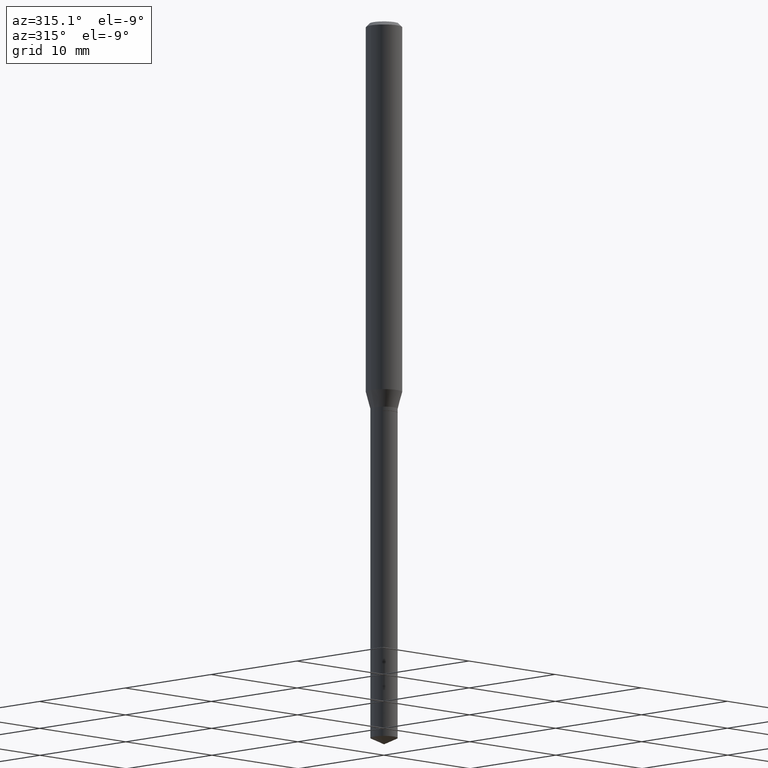
[diagram: clean part render]
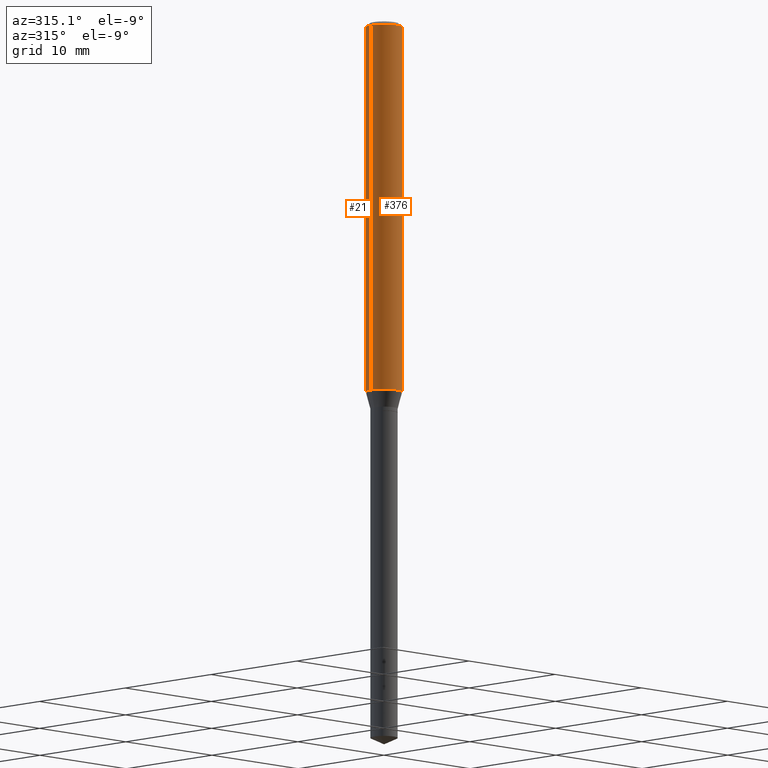
[diagram: same view with one multi-face feature highlighted, each face labeled with its STEP entity id]
A machine part, auxiliary view. The highlighted faces form ONE feature: a constant-radius fillet chain: 2 tangent blend faces with common blend radius 1.4999 mm. The faces share edges in the B-rep.
Their STEP definitions:
[1] entity #376 (Cylinder):
#10 = DIRECTION ( 'NONE',  ( -2.445468806185136597E-29, 3.491481338843145583E-15, 1.000000000000000000 ) ) ;
#12 = VECTOR ( 'NONE', #152, 39.37007874015748143 ) ;
#16 = CARTESIAN_POINT ( 'NONE',  ( 2.952297720010632221E-29, -4.215098704205641953E-15, -1.207252250588358500 ) ) ;
#27 = ORIENTED_EDGE ( 'NONE', *, *, #114, .T. ) ;
#34 = CARTESIAN_POINT ( 'NONE',  ( 0.05905000000000007465, -4.123439461173745750E-16, 2.879382386107504074E-30 ) ) ;
#45 = AXIS2_PLACEMENT_3D ( 'NONE', #365, #257, #410 ) ;
#46 = CARTESIAN_POINT ( 'NONE',  ( 0.05905000000000015098, -4.627442650323016873E-15, -1.207252250588358500 ) ) ;
#66 = AXIS2_PLACEMENT_3D ( 'NONE', #16, #10, #360 ) ;
#92 = CARTESIAN_POINT ( 'NONE',  ( -0.05904999999999999832, -1.708591063942349362E-15, -0.01181000000000007044 ) ) ;
#99 = VERTEX_POINT ( 'NONE', #92 ) ;
#103 = CARTESIAN_POINT ( 'NONE',  ( -0.05905000000000015098, -3.795523218739302460E-15, -1.207252250588358500 ) ) ;
#104 = VERTEX_POINT ( 'NONE', #46 ) ;
#114 = EDGE_CURVE ( 'NONE', #220, #104, #214, .T. ) ;
#118 = LINE ( 'NONE', #34, #12 ) ;
#125 = EDGE_CURVE ( 'NONE', #220, #99, #394, .T. ) ;
#145 = EDGE_LOOP ( 'NONE', ( #197, #27, #254, #263 ) ) ;
#152 = DIRECTION ( 'NONE',  ( -2.445468806185136877E-29, 3.491481338843145188E-15, 1.000000000000000000 ) ) ;
#175 = CIRCLE ( 'NONE', #45, 0.05904999999999999832 ) ;
#197 = ORIENTED_EDGE ( 'NONE', *, *, #125, .F. ) ;
#203 = DIRECTION ( 'NONE',  ( -2.445468806185136877E-29, 3.491481338843145188E-15, 1.000000000000000000 ) ) ;
#214 = CIRCLE ( 'NONE', #66, 0.05905000000000015098 ) ;
#220 = VERTEX_POINT ( 'NONE', #103 ) ;
#222 = DIRECTION ( 'NONE',  ( -2.445468806185136597E-29, 3.491481338843145583E-15, 1.000000000000000000 ) ) ;
#227 = CARTESIAN_POINT ( 'NONE',  ( 0.000000000000000000, 0.000000000000000000, 0.000000000000000000 ) ) ;
#254 = ORIENTED_EDGE ( 'NONE', *, *, #361, .T. ) ;
#257 = DIRECTION ( 'NONE',  ( -2.445468806185136597E-29, 3.491481338843145583E-15, 1.000000000000000000 ) ) ;
#263 = ORIENTED_EDGE ( 'NONE', *, *, #295, .F. ) ;
#295 = EDGE_CURVE ( 'NONE', #99, #459, #175, .T. ) ;
#315 = CARTESIAN_POINT ( 'NONE',  ( -0.05905000000000007465, 4.195754854663396902E-16, -2.904631170795525395E-30 ) ) ;
#343 = VECTOR ( 'NONE', #203, 39.37007874015748143 ) ;
#348 = DIRECTION ( 'NONE',  ( 1.000000000000000000, -6.982962677686266711E-15, 4.876176775795936353E-29 ) ) ;
#358 = AXIS2_PLACEMENT_3D ( 'NONE', #227, #222, #348 ) ;
#360 = DIRECTION ( 'NONE',  ( 1.000000000000000000, -6.982962677686262766E-15, 0.000000000000000000 ) ) ;
#361 = EDGE_CURVE ( 'NONE', #104, #459, #118, .T. ) ;
#365 = CARTESIAN_POINT ( 'NONE',  ( 2.888098660104663766E-31, -4.123439461173779647E-17, -0.01181000000000007044 ) ) ;
#376 = ADVANCED_FACE ( 'NONE', ( #380 ), #420, .T. ) ;
#380 = FACE_OUTER_BOUND ( 'NONE', #145, .T. ) ;
#394 = LINE ( 'NONE', #315, #343 ) ;
#410 = DIRECTION ( 'NONE',  ( 1.000000000000000000, -6.982962677686266711E-15, 0.000000000000000000 ) ) ;
#420 = CYLINDRICAL_SURFACE ( 'NONE', #358, 0.05905000000000007465 ) ;
#423 = CARTESIAN_POINT ( 'NONE',  ( 0.05904999999999999832, -4.535783407291118600E-16, -0.01181000000000007044 ) ) ;
#459 = VERTEX_POINT ( 'NONE', #423 ) ;
[2] entity #21 (Cylinder):
#12 = VECTOR ( 'NONE', #152, 39.37007874015748143 ) ;
#21 = ADVANCED_FACE ( 'NONE', ( #465 ), #48, .T. ) ;
#34 = CARTESIAN_POINT ( 'NONE',  ( 0.05905000000000007465, -4.123439461173745750E-16, 2.879382386107504074E-30 ) ) ;
#35 = ORIENTED_EDGE ( 'NONE', *, *, #228, .F. ) ;
#46 = CARTESIAN_POINT ( 'NONE',  ( 0.05905000000000015098, -4.627442650323016873E-15, -1.207252250588358500 ) ) ;
#48 = CYLINDRICAL_SURFACE ( 'NONE', #183, 0.05905000000000007465 ) ;
#92 = CARTESIAN_POINT ( 'NONE',  ( -0.05904999999999999832, -1.708591063942349362E-15, -0.01181000000000007044 ) ) ;
#98 = DIRECTION ( 'NONE',  ( -2.445468806185136597E-29, 3.491481338843145583E-15, 1.000000000000000000 ) ) ;
#99 = VERTEX_POINT ( 'NONE', #92 ) ;
#103 = CARTESIAN_POINT ( 'NONE',  ( -0.05905000000000015098, -3.795523218739302460E-15, -1.207252250588358500 ) ) ;
#104 = VERTEX_POINT ( 'NONE', #46 ) ;
#109 = CIRCLE ( 'NONE', #346, 0.05905000000000015098 ) ;
#118 = LINE ( 'NONE', #34, #12 ) ;
#125 = EDGE_CURVE ( 'NONE', #220, #99, #394, .T. ) ;
#152 = DIRECTION ( 'NONE',  ( -2.445468806185136877E-29, 3.491481338843145188E-15, 1.000000000000000000 ) ) ;
#157 = DIRECTION ( 'NONE',  ( 1.000000000000000000, -6.982962677686266711E-15, 4.876176775795936353E-29 ) ) ;
#159 = AXIS2_PLACEMENT_3D ( 'NONE', #210, #98, #448 ) ;
#163 = EDGE_LOOP ( 'NONE', ( #463, #256, #35, #443 ) ) ;
#167 = CARTESIAN_POINT ( 'NONE',  ( 0.000000000000000000, 0.000000000000000000, 0.000000000000000000 ) ) ;
#183 = AXIS2_PLACEMENT_3D ( 'NONE', #167, #247, #157 ) ;
#192 = CIRCLE ( 'NONE', #159, 0.05904999999999999832 ) ;
#203 = DIRECTION ( 'NONE',  ( -2.445468806185136877E-29, 3.491481338843145188E-15, 1.000000000000000000 ) ) ;
#210 = CARTESIAN_POINT ( 'NONE',  ( 2.888098660104663766E-31, -4.123439461173779647E-17, -0.01181000000000007044 ) ) ;
#220 = VERTEX_POINT ( 'NONE', #103 ) ;
#228 = EDGE_CURVE ( 'NONE', #459, #99, #192, .T. ) ;
#247 = DIRECTION ( 'NONE',  ( -2.445468806185136597E-29, 3.491481338843145583E-15, 1.000000000000000000 ) ) ;
#256 = ORIENTED_EDGE ( 'NONE', *, *, #125, .T. ) ;
#309 = EDGE_CURVE ( 'NONE', #104, #220, #109, .T. ) ;
#315 = CARTESIAN_POINT ( 'NONE',  ( -0.05905000000000007465, 4.195754854663396902E-16, -2.904631170795525395E-30 ) ) ;
#335 = DIRECTION ( 'NONE',  ( -2.445468806185136597E-29, 3.491481338843145583E-15, 1.000000000000000000 ) ) ;
#343 = VECTOR ( 'NONE', #203, 39.37007874015748143 ) ;
#346 = AXIS2_PLACEMENT_3D ( 'NONE', #478, #335, #370 ) ;
#361 = EDGE_CURVE ( 'NONE', #104, #459, #118, .T. ) ;
#370 = DIRECTION ( 'NONE',  ( 1.000000000000000000, -6.982962677686262766E-15, 0.000000000000000000 ) ) ;
#394 = LINE ( 'NONE', #315, #343 ) ;
#423 = CARTESIAN_POINT ( 'NONE',  ( 0.05904999999999999832, -4.535783407291118600E-16, -0.01181000000000007044 ) ) ;
#443 = ORIENTED_EDGE ( 'NONE', *, *, #361, .F. ) ;
#448 = DIRECTION ( 'NONE',  ( 1.000000000000000000, -6.982962677686266711E-15, 0.000000000000000000 ) ) ;
#459 = VERTEX_POINT ( 'NONE', #423 ) ;
#463 = ORIENTED_EDGE ( 'NONE', *, *, #309, .T. ) ;
#465 = FACE_OUTER_BOUND ( 'NONE', #163, .T. ) ;
#478 = CARTESIAN_POINT ( 'NONE',  ( 2.952297720010632221E-29, -4.215098704205641953E-15, -1.207252250588358500 ) ) ;